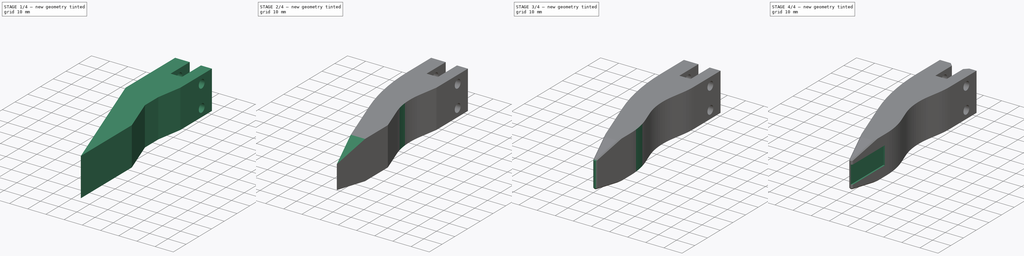
[diagram: build sequence overview — one tinted view per stage of 4, left to right]
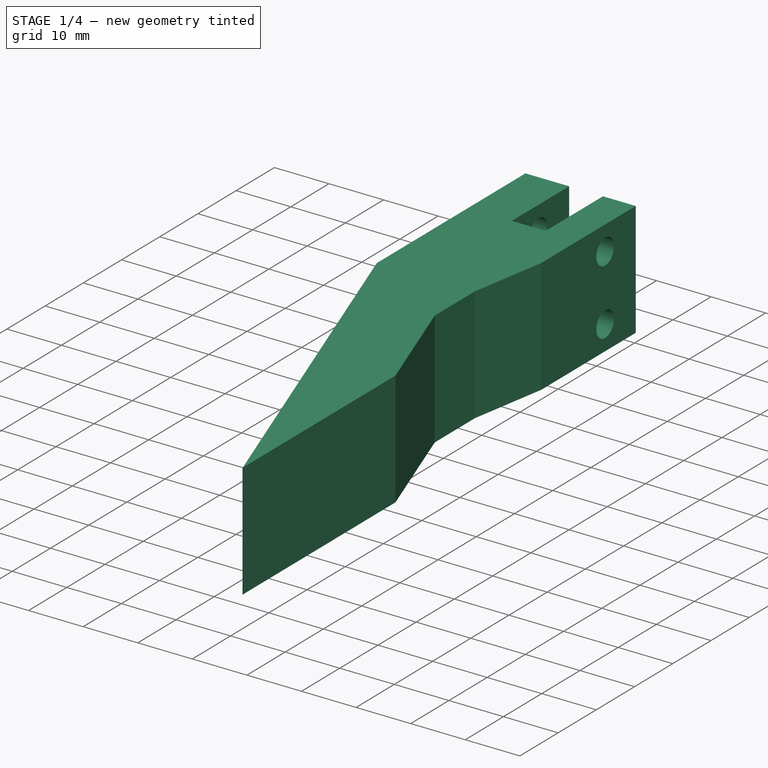
[diagram: stage 1 of 4 — iso view after this stage's code; geometry added in this stage tinted green]
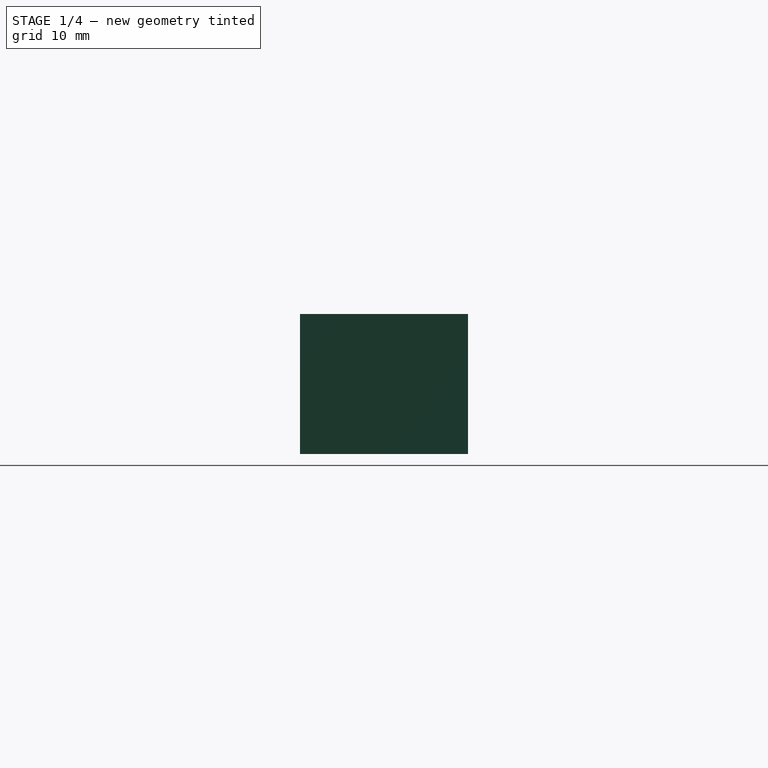
[diagram: stage 1 of 4 — front view after this stage's code; geometry added in this stage tinted green]
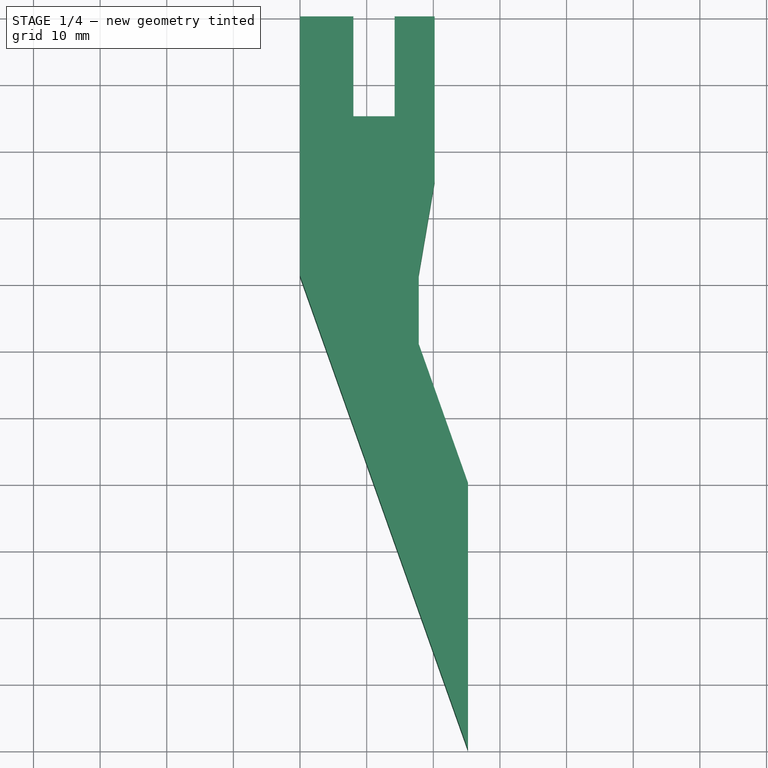
[diagram: stage 1 of 4 — top view after this stage's code; geometry added in this stage tinted green]
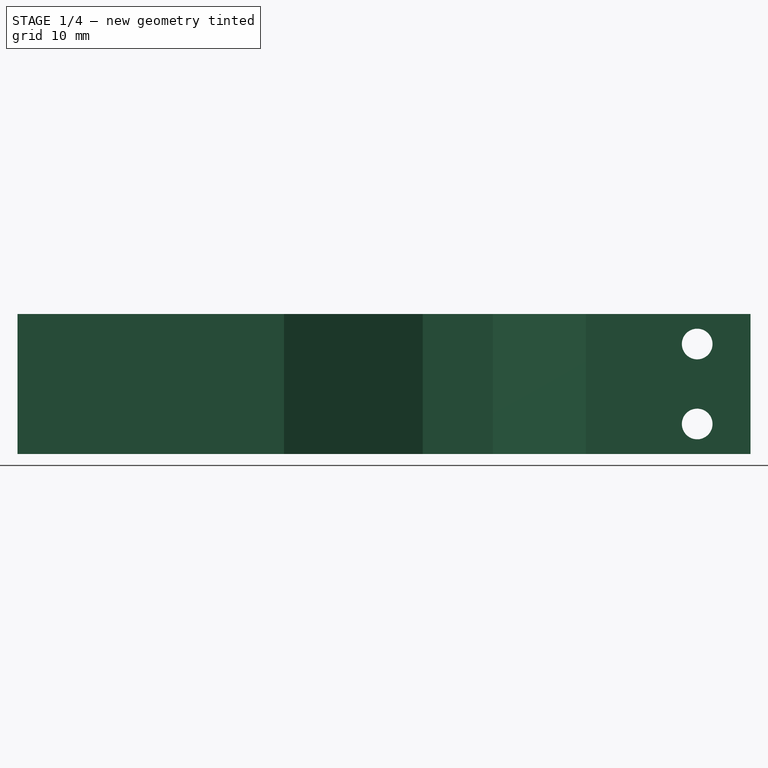
[diagram: stage 1 of 4 — right view after this stage's code; geometry added in this stage tinted green]
FCSTD DOCUMENT  (FreeCAD 0.17R13528 (Git))
Label: gripper
License: All rights reserved
LicenseURL: http://en.wikipedia.org/wiki/All_rights_reserved
objects: Sketcher::SketchObject×5, PartDesign::Fillet×5, PartDesign::Pocket×4, PartDesign::Chamfer×2, PartDesign::Pad×1, PartDesign::Body×1
note: 23 computed .brp shape members not serialized (recipe doc carries the construction recipe); baked Part::Feature solids carry a one-line shape summary decoded from their .brp

FEATURE [Sketcher::SketchObject] Sketch
  MapMode = 5
  Support = -> [XY_Plane]
  sketch-geometry (15):
    g0: LineSegment StartX=0 StartY=-38.9021 StartZ=0 EndX=0 EndY=0 EndZ=0
    g1: LineSegment StartX=0 StartY=0 StartZ=0 EndX=8 EndY=0 EndZ=0
    g2: LineSegment StartX=8 StartY=0 StartZ=0 EndX=8 EndY=-15 EndZ=0
    g3: LineSegment StartX=8 StartY=-15 StartZ=0 EndX=14.2 EndY=-15 EndZ=0
    g4: LineSegment StartX=17.823 StartY=-49.1868 StartZ=0 EndX=25.2 EndY=-70 EndZ=0
    g5: LineSegment StartX=25.2 StartY=-70 StartZ=0 EndX=25.2 EndY=-110 EndZ=0
    g6: LineSegment StartX=25.2 StartY=-110 StartZ=0 EndX=0 EndY=-38.9021 EndZ=0
    g7: LineSegment StartX=14.2 StartY=-15 StartZ=0 EndX=14.2 EndY=0 EndZ=0
    g8: LineSegment StartX=14.2 StartY=0 StartZ=0 EndX=20.2 EndY=0 EndZ=0
    g9: LineSegment StartX=20.2 StartY=0 StartZ=0 EndX=20.2 EndY=-24.7045 EndZ=0
    g10: LineSegment StartX=20.2 StartY=-24.7045 StartZ=0 EndX=17.823 EndY=-38.6618 EndZ=0
    g11: LineSegment StartX=17.823 StartY=-38.6618 StartZ=0 EndX=17.823 EndY=-49.1868 EndZ=0
    g12: GeomPoint X=17.823 Y=-49.1868 Z=0
    g13: GeomPoint X=17.823 Y=-49.1868 Z=0
    g14: GeomPoint X=13.3774 Y=-40.0628 Z=0
  constraints (33):
    c: Vertical(g0)
    c: Coincident(g0,g1)
    c: Horizontal(g1)
    c: Coincident(g1,g2)
    c: Coincident(g2,g3)
    c: Horizontal(g3)
    c: Vertical(g2)
    c: Coincident(g4,g5)
    c: Vertical(g5)
    c: Coincident(g5,g6)
    c: Coincident(g0,g6)
    c: Parallel(g4,g6)
    c: DistanceY(g2,g1) = 15
    c: DistanceX(g0,g1) = 8
    c: DistanceY(g5,g0) = 110
    c: DistanceX(g2,g4) = 17.2
    c: Coincident(g0,g-1)
    c: Coincident(g7,g3)
    c: PointOnObject(g7,g-1)
    c: Vertical(g7)
    c: Coincident(g8,g7)
    c: PointOnObject(g8,g-1)
    c: Coincident(g9,g8)
    c: Vertical(g9)
    c: Coincident(g10,g9)
    c: Coincident(g11,g10)
    c: Vertical(g11)
    c: DistanceX(g7,g8) = 6
    c: DistanceX(g2,g3) = 6.2
    c: Coincident(g12,g11)
    c: Coincident(g13,g4)
    c: Coincident(g11,g4)
    c: DistanceY(g5,g5) = 40
FEATURE [PartDesign::Pad] Pad
  Length = 10.5
  Length2 = 10.5
  Profile = -> Sketch
  Type = 4
FEATURE [Sketcher::SketchObject] Sketch001
  MapMode = 5
  Placement = pos=(0,0,0) rot=(0.57735,-0.57735,-0.57735;2.0944rad)
  Support = -> [Pad]
  expr: Constraints[2] = 7.4000000000000004 / 2
  expr: Constraints[3] = 7.4000000000000004 / 2
  expr: Constraints[0] = 3.7000000000000002 + 3.7000000000000002 + 4.6500000000000004
  sketch-geometry (2):
    g0: Circle CenterX=8 CenterY=6.025 CenterZ=0 NormalX=0 NormalY=0 NormalZ=1 AngleXU=0 Radius=3.7
    g1: Circle CenterX=8 CenterY=-6.025 CenterZ=0 NormalX=0 NormalY=0 NormalZ=1 AngleXU=0 Radius=3.7
  constraints (6):
    c: DistanceY(g1,g0) = 12.05
    c: DistanceX(g1,g0) = 0
    c: Radius(g0) = 3.7
    c: Radius(g1) = 3.7
    c: Symmetric(g1,g0,g-1)
    c: DistanceX(g-1,g0) = 8
FEATURE [PartDesign::Pocket] Pocket
  BaseFeature = -> Pad
  Length = 3.5
  Length2 = 0
  Profile = -> Sketch001
  Type = 0
FEATURE [Sketcher::SketchObject] Sketch003
  MapMode = 5
  Placement = pos=(0,0,0) rot=(0.57735,0.57735,0.57735;2.0944rad)
  Support = -> [YZ_Plane]
  sketch-geometry (2):
    g0: Circle CenterX=-8 CenterY=6 CenterZ=0 NormalX=0 NormalY=0 NormalZ=1 AngleXU=0 Radius=2.3
    g1: Circle CenterX=-8 CenterY=-6 CenterZ=0 NormalX=0 NormalY=0 NormalZ=1 AngleXU=0 Radius=2.3
  constraints (6):
    c: Radius(g0) = 2.3
    c: Radius(g1) = 2.3
    c: Vertical(g1,g0)
    c: Symmetric(g0,g1,g-1)
    c: DistanceX(g0,g-1) = 8
    c: DistanceY(g1,g0) = 12
FEATURE [PartDesign::Pocket] Pocket001
  BaseFeature = -> Pocket
  Length = 60
  Length2 = 100
  Profile = -> Sketch003
  Reversed = true
  Type = 0
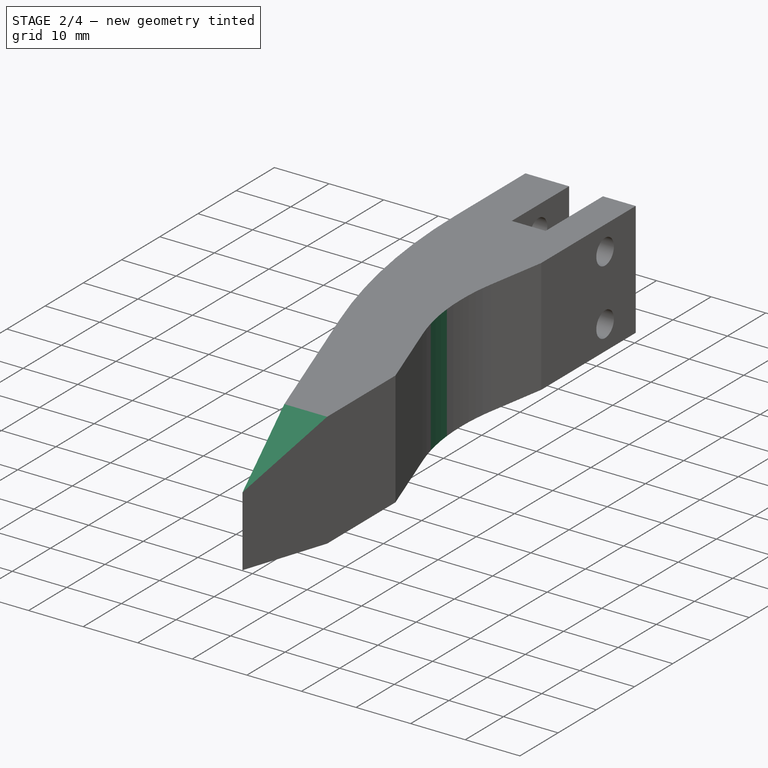
[diagram: stage 2 of 4 — iso view after this stage's code; geometry added in this stage tinted green]
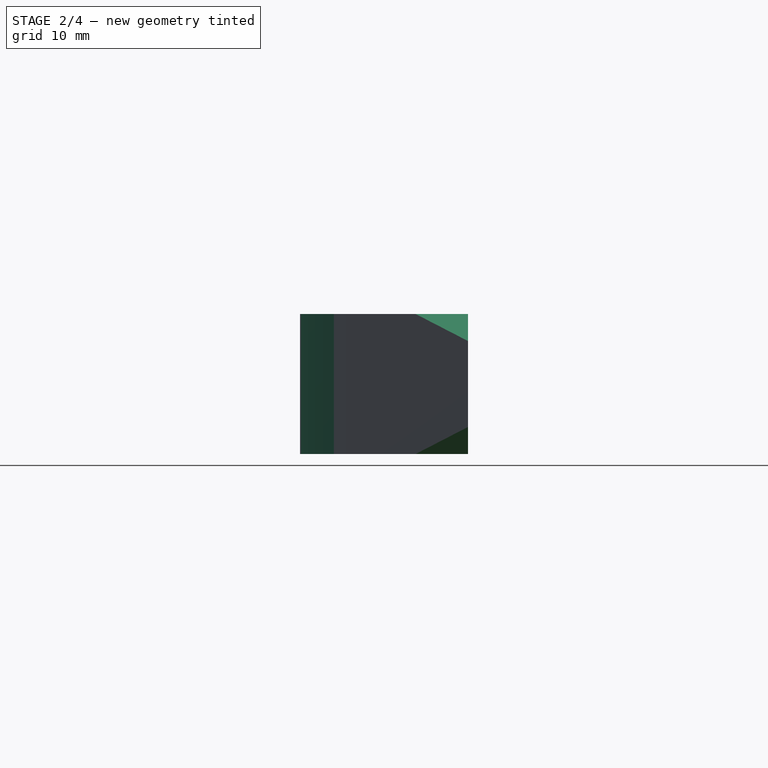
[diagram: stage 2 of 4 — front view after this stage's code; geometry added in this stage tinted green]
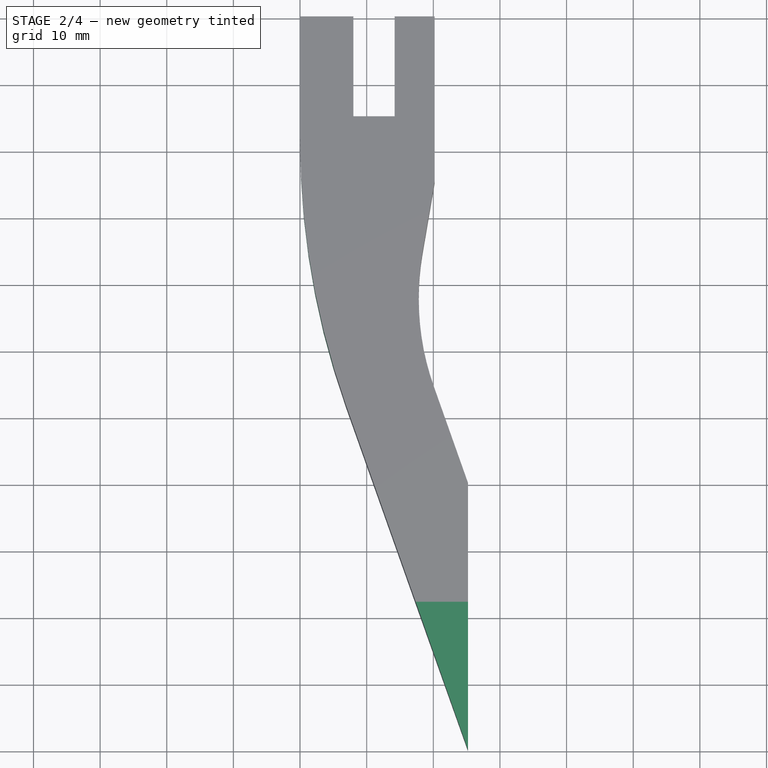
[diagram: stage 2 of 4 — top view after this stage's code; geometry added in this stage tinted green]
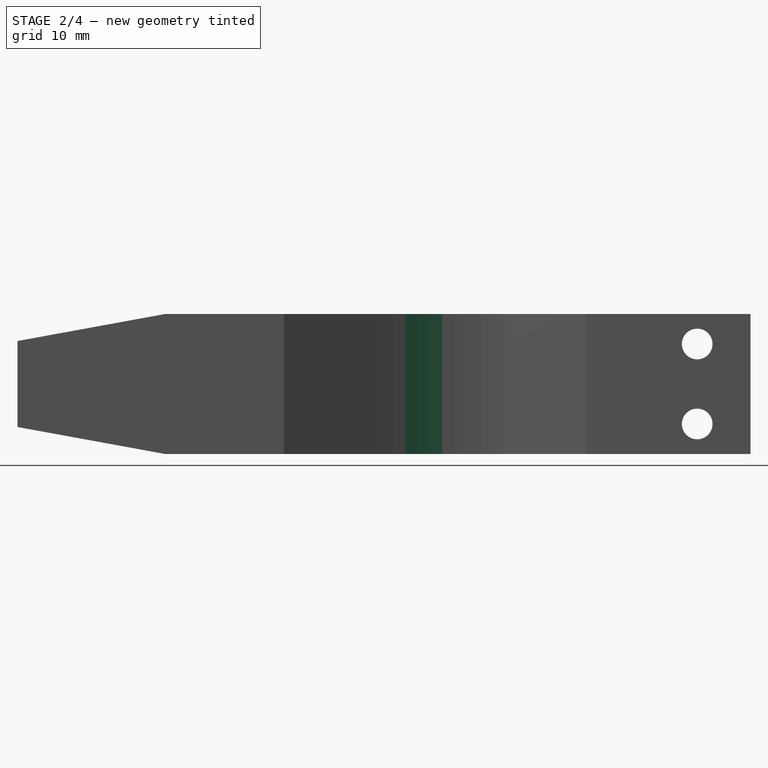
[diagram: stage 2 of 4 — right view after this stage's code; geometry added in this stage tinted green]
FEATURE [Sketcher::SketchObject] Sketch004
  MapMode = 5
  Placement = pos=(0,0,0) rot=(0.57735,0.57735,0.57735;2.0944rad)
  Support = -> [YZ_Plane]
  sketch-geometry (9):
    g0: LineSegment StartX=-110.545 StartY=6.35139 StartZ=0 EndX=-110.545 EndY=-6.35139 EndZ=0
    g1: LineSegment StartX=-110.545 StartY=-6.35139 StartZ=0 EndX=-39.6245 EndY=-19.3278 EndZ=0
    g2: LineSegment StartX=-39.6245 StartY=-19.3278 StartZ=0 EndX=-39.6245 EndY=-51.8884 EndZ=0
    g3: LineSegment StartX=-39.6245 StartY=-51.8884 StartZ=0 EndX=-85.1846 EndY=-51.8884 EndZ=0
    g4: LineSegment StartX=-85.1846 StartY=-51.8884 StartZ=0 EndX=-138.221 EndY=-51.8884 EndZ=0
    g5: LineSegment StartX=-138.221 StartY=-51.8884 StartZ=0 EndX=-138.221 EndY=51.8884 EndZ=0
    g6: LineSegment StartX=-138.221 StartY=51.8884 StartZ=0 EndX=-39.6245 EndY=51.8884 EndZ=0
    g7: LineSegment StartX=-39.6245 StartY=51.8884 StartZ=0 EndX=-39.6245 EndY=19.3278 EndZ=0
    g8: LineSegment StartX=-39.6245 StartY=19.3278 StartZ=0 EndX=-110.545 EndY=6.35139 EndZ=0
  constraints (17):
    c: Coincident(g0,g1)
    c: Coincident(g1,g2)
    c: Vertical(g2)
    c: Coincident(g2,g3)
    c: Horizontal(g3)
    c: Coincident(g3,g4)
    c: Horizontal(g4)
    c: Coincident(g4,g5)
    c: Coincident(g5,g6)
    c: Coincident(g7,g6)
    c: Coincident(g8,g7)
    c: Coincident(g8,g0)
    c: Symmetric(g0,g0,g-1)
    c: Symmetric(g7,g1,g-1)
    c: Symmetric(g5,g4,g-1)
    c: Vertical(g7)
    c: Horizontal(g6)
FEATURE [PartDesign::Pocket] Pocket002
  BaseFeature = -> Pocket001
  Length = 100
  Length2 = 100
  Profile = -> Sketch004
  Reversed = true
  Type = 0
FEATURE [PartDesign::Fillet] Fillet
  Base = -> Pocket002 [Edge1]
  BaseFeature = -> Pocket002
  Radius = 120
FEATURE [PartDesign::Fillet] Fillet001
  Base = -> Fillet [Edge45,Edge49]
  BaseFeature = -> Fillet
  Radius = 39
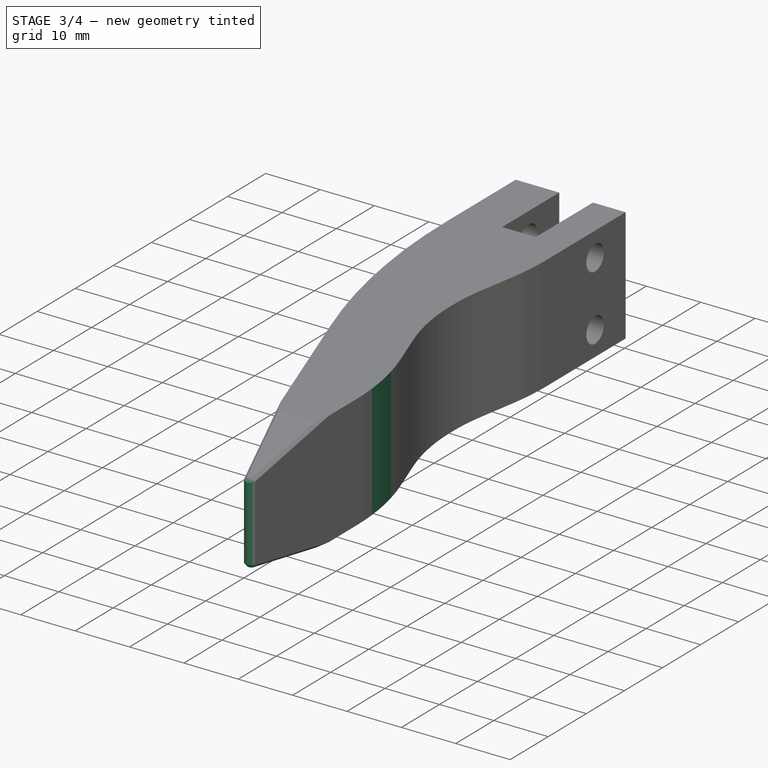
[diagram: stage 3 of 4 — iso view after this stage's code; geometry added in this stage tinted green]
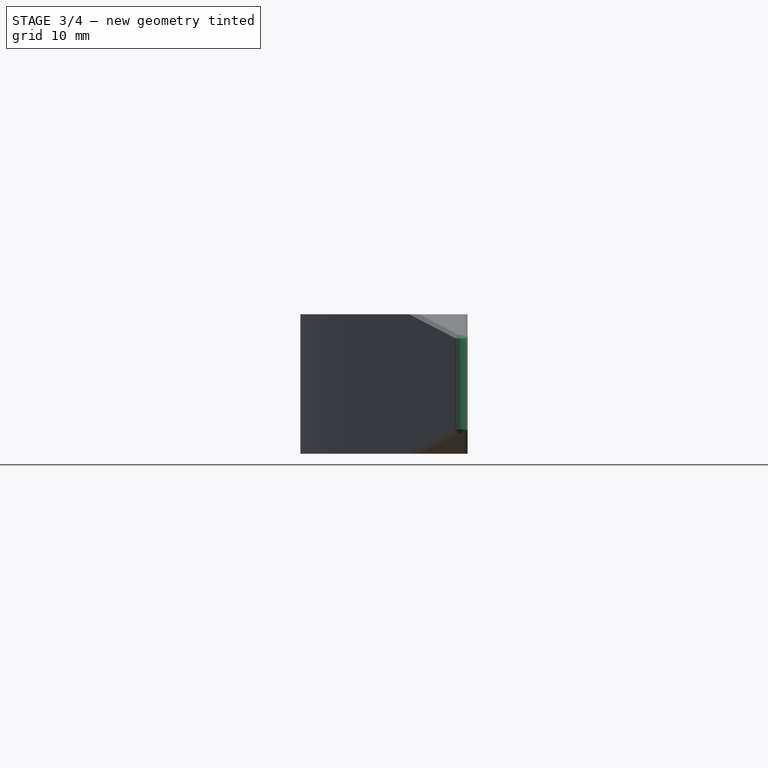
[diagram: stage 3 of 4 — front view after this stage's code; geometry added in this stage tinted green]
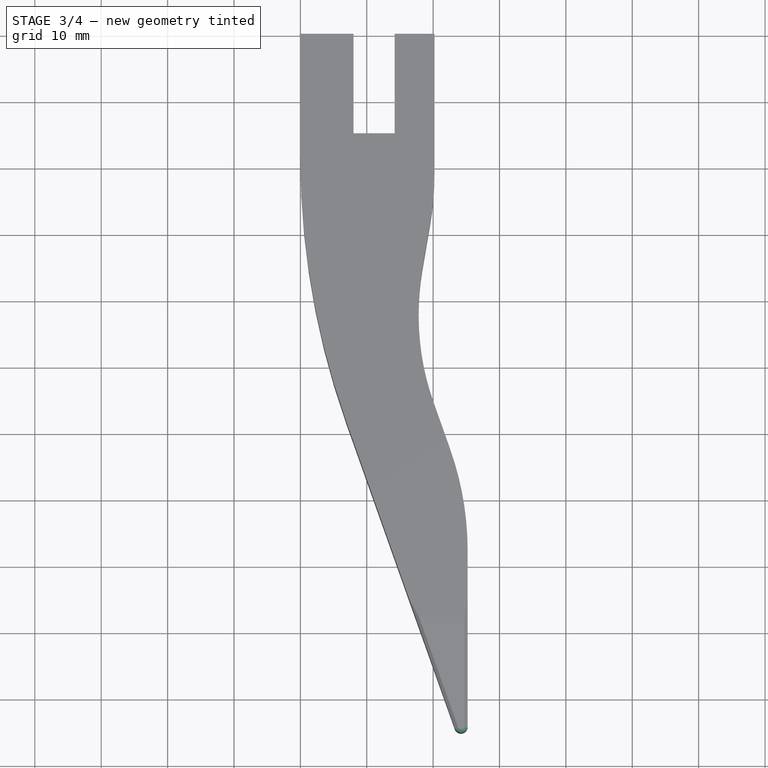
[diagram: stage 3 of 4 — top view after this stage's code; geometry added in this stage tinted green]
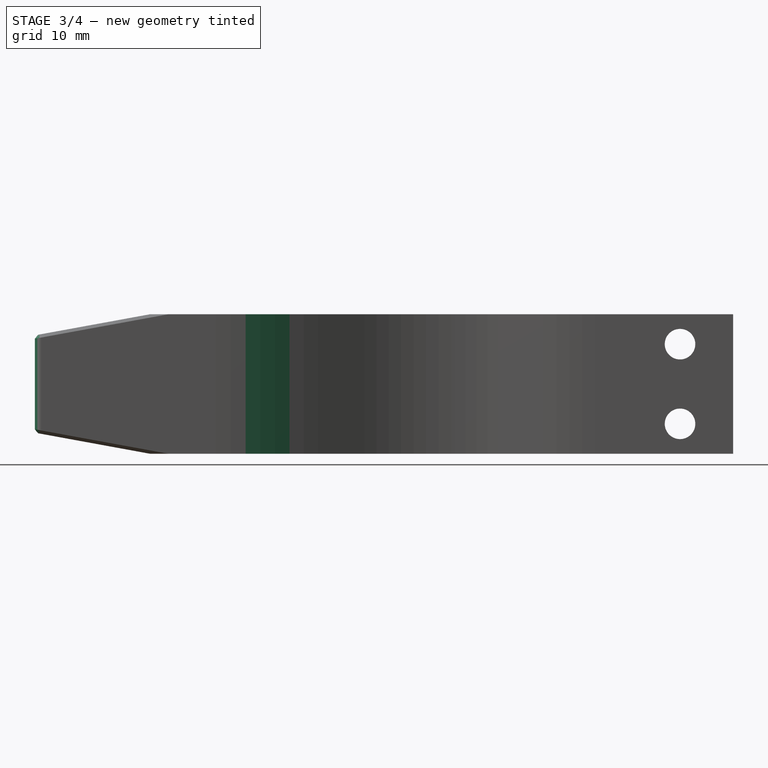
[diagram: stage 3 of 4 — right view after this stage's code; geometry added in this stage tinted green]
FEATURE [PartDesign::Fillet] Fillet002
  Base = -> Fillet001 [Edge18,Edge34]
  BaseFeature = -> Fillet001
  Radius = 46
FEATURE [PartDesign::Fillet] Fillet003
  Base = -> Fillet002 [Edge28]
  BaseFeature = -> Fillet002
  Radius = 1
FEATURE [PartDesign::Chamfer] Chamfer
  Base = -> Fillet003 [Edge11,Edge8]
  BaseFeature = -> Fillet003
  Size = 0.5
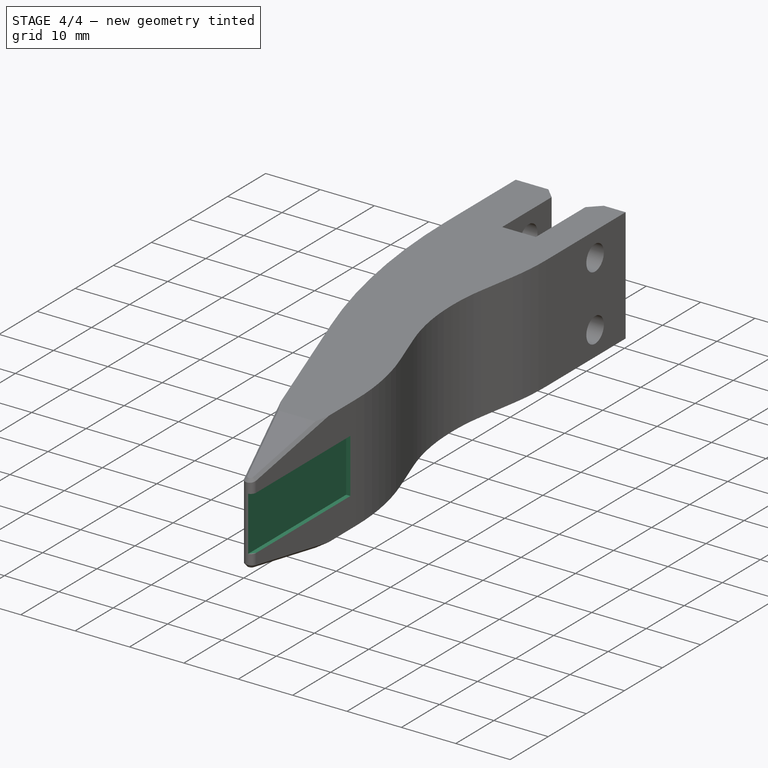
[diagram: stage 4 of 4 — iso view after this stage's code; geometry added in this stage tinted green]
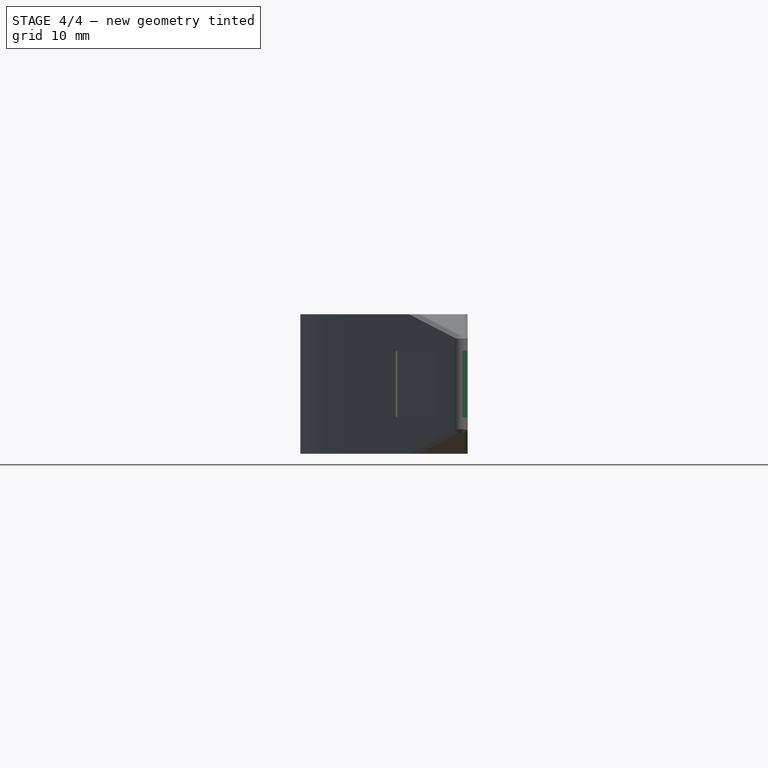
[diagram: stage 4 of 4 — front view after this stage's code; geometry added in this stage tinted green]
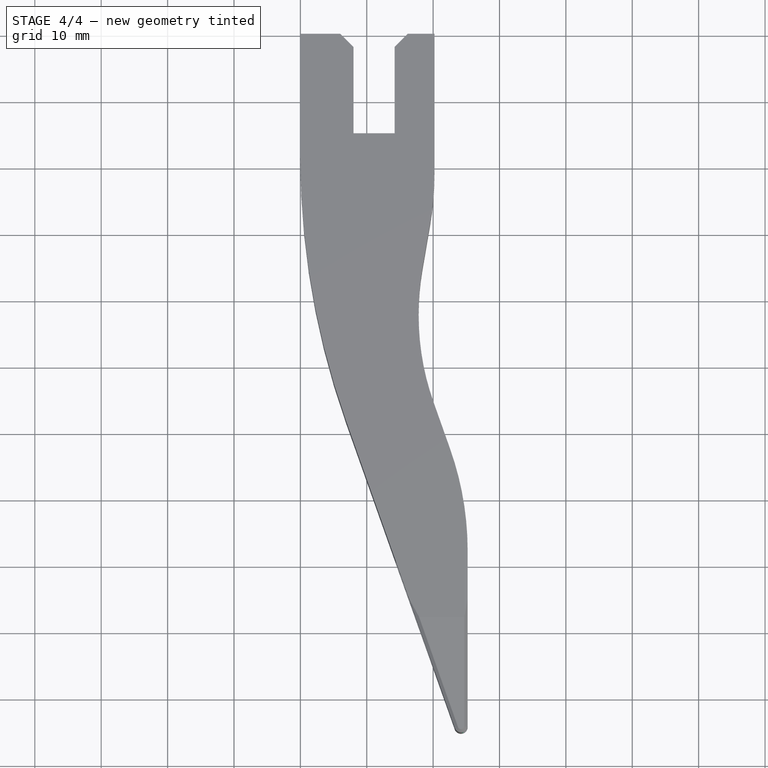
[diagram: stage 4 of 4 — top view after this stage's code; geometry added in this stage tinted green]
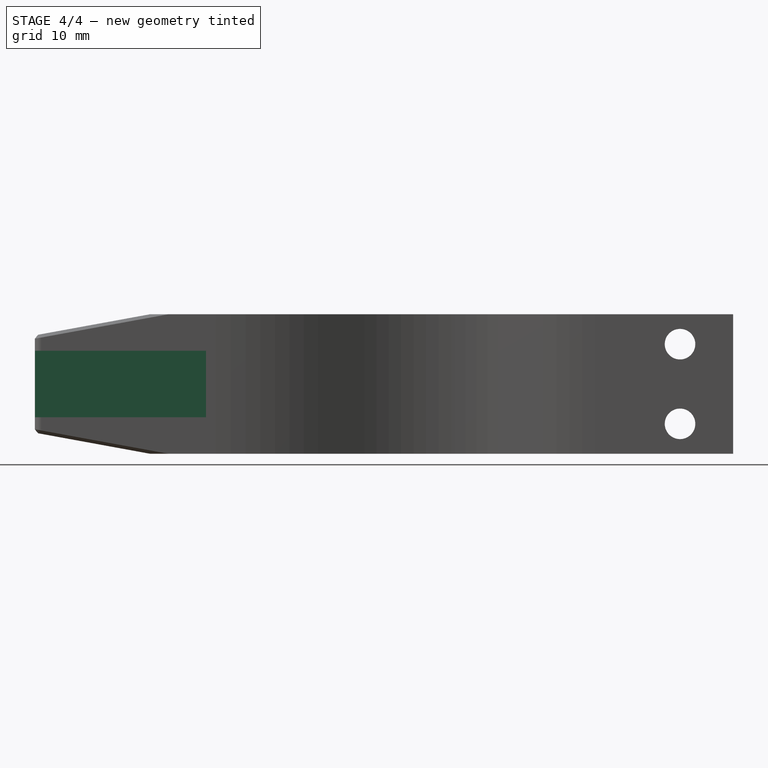
[diagram: stage 4 of 4 — right view after this stage's code; geometry added in this stage tinted green]
FEATURE [PartDesign::Chamfer] Chamfer001
  Base = -> Chamfer [Edge80,Edge71]
  BaseFeature = -> Chamfer
  Size = 2
FEATURE [Sketcher::SketchObject] Sketch005
  MapMode = 5
  Support = -> [XY_Plane]
  sketch-geometry (9):
    g0: LineSegment StartX=24.2846 StartY=-107.455 StartZ=0 EndX=24.2846 EndY=-79.3872 EndZ=0
    g1: LineSegment StartX=24.2846 StartY=-79.3872 StartZ=0 EndX=28.2772 EndY=-79.3872 EndZ=0
    g2: LineSegment StartX=28.2772 StartY=-79.3872 StartZ=0 EndX=28.2772 EndY=-112.569 EndZ=0
    g3: LineSegment StartX=28.2772 StartY=-112.569 StartZ=0 EndX=22.6772 EndY=-112.569 EndZ=0
    g4: LineSegment StartX=22.6772 StartY=-112.569 StartZ=0 EndX=11.7291 EndY=-80.4086 EndZ=0
    g5: LineSegment StartX=11.7291 StartY=-80.4086 StartZ=0 EndX=14.7295 EndY=-79.3872 EndZ=0
    g6: LineSegment StartX=14.7295 StartY=-79.3872 StartZ=0 EndX=24.2846 EndY=-107.455 EndZ=0
    g7: GeomPoint X=24.7046 Y=-79.3872 Z=0
    g8: GeomPoint X=14.3319 Y=-79.5225 Z=0
  constraints (19):
    c: Vertical(g0)
    c: Coincident(g0,g1)
    c: Horizontal(g1)
    c: Coincident(g1,g2)
    c: Coincident(g2,g3)
    c: Horizontal(g3)
    c: Coincident(g3,g4)
    c: Coincident(g4,g5)
    c: Coincident(g5,g6)
    c: Coincident(g6,g0)
    c: Angle(g0,g6) = 0.328122
    c: Parallel(g4,g6)
    c: Vertical(g2)
    c: Horizontal(g5,g0)
    c: PointOnObject(g7,g1)
    c: DistanceX(g0,g7) = 0.42
    c: Perpendicular(g6,g5)
    c: PointOnObject(g8,g5)
    c: Distance(g5,g8) = 0.42
FEATURE [PartDesign::Pocket] Pocket003
  BaseFeature = -> Chamfer001
  Length = 5
  Length2 = 5
  Profile = -> Sketch005
  Type = 4
FEATURE [PartDesign::Fillet] Fillet005
  Base = -> Pocket003 [Edge97,Edge93]
  BaseFeature = -> Pocket003
  Radius = 0.58
FEATURE [PartDesign::Body] Body
  Group = -> [Sketch,Pad,Sketch001,Pocket,Sketch003,Pocket001,Sketch004,Pocket002,Fillet,Fillet001,Fillet002,Fillet003,Chamfer,Chamfer001,Sketch005,Pocket003,Fillet005]
  Origin = -> Origin
  Tip = -> Fillet005
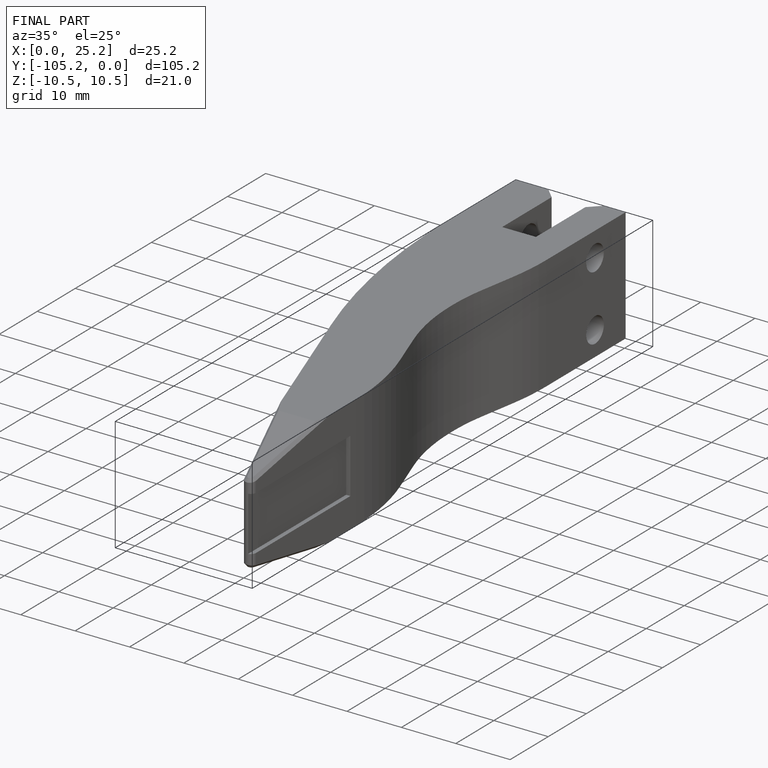
[diagram: finished part — iso view with bounding-box wireframe]
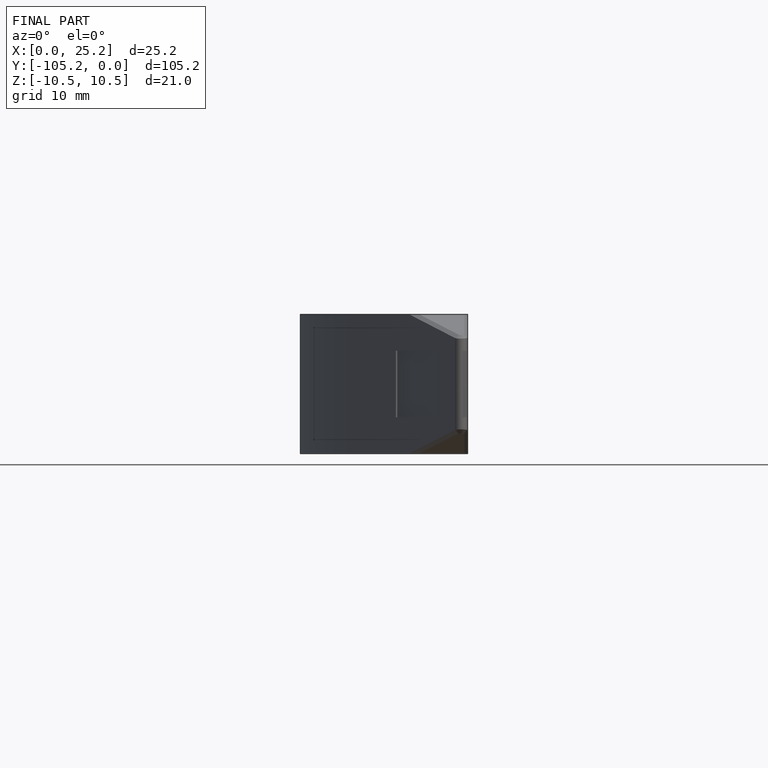
[diagram: finished part — front view with bounding-box wireframe]
